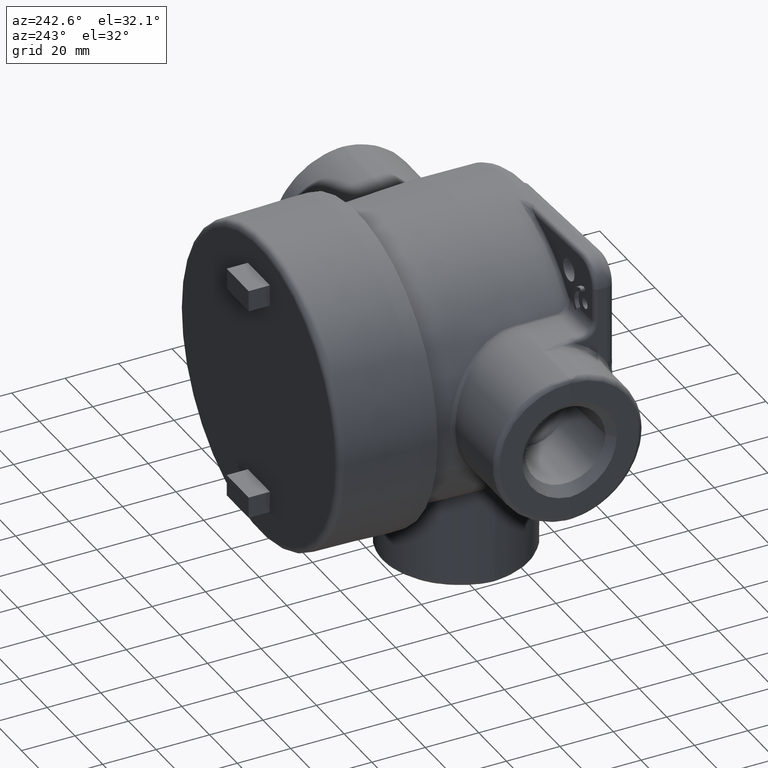
[diagram: clean part render]
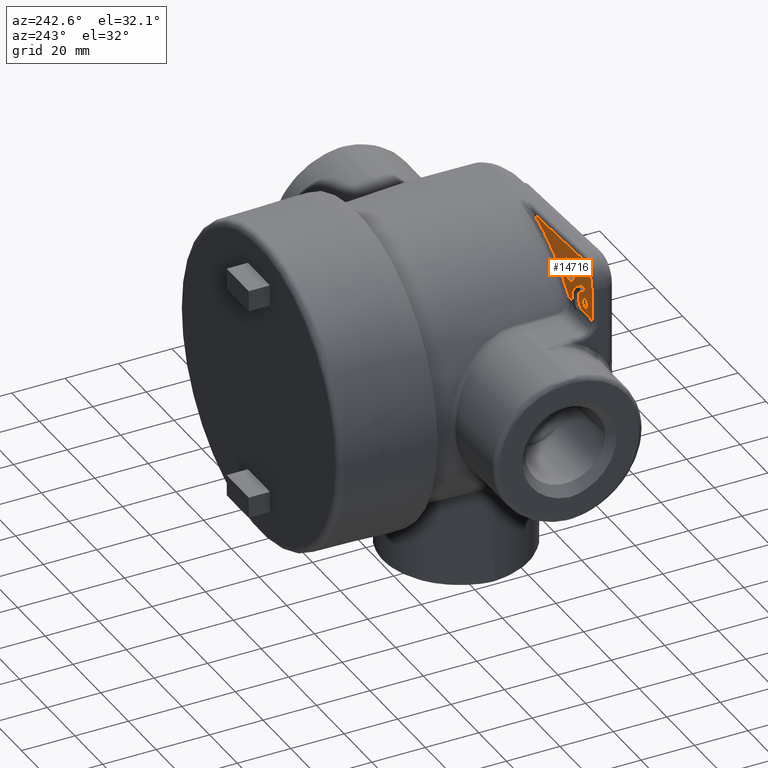
[diagram: same view with one face highlighted and labeled with its STEP entity id]
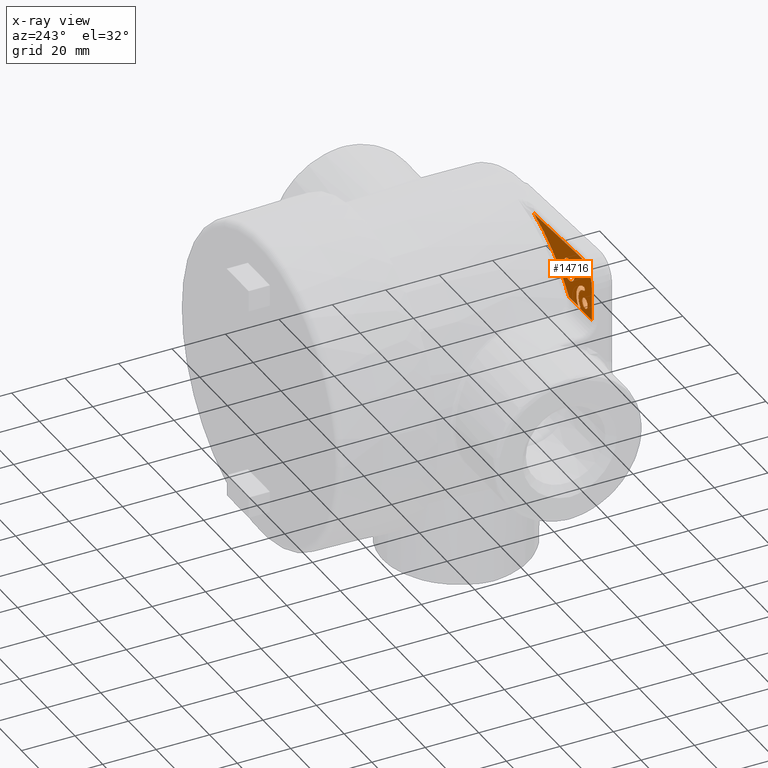
[diagram: x-ray of the same camera — body ghosted, the highlighted face saturated]
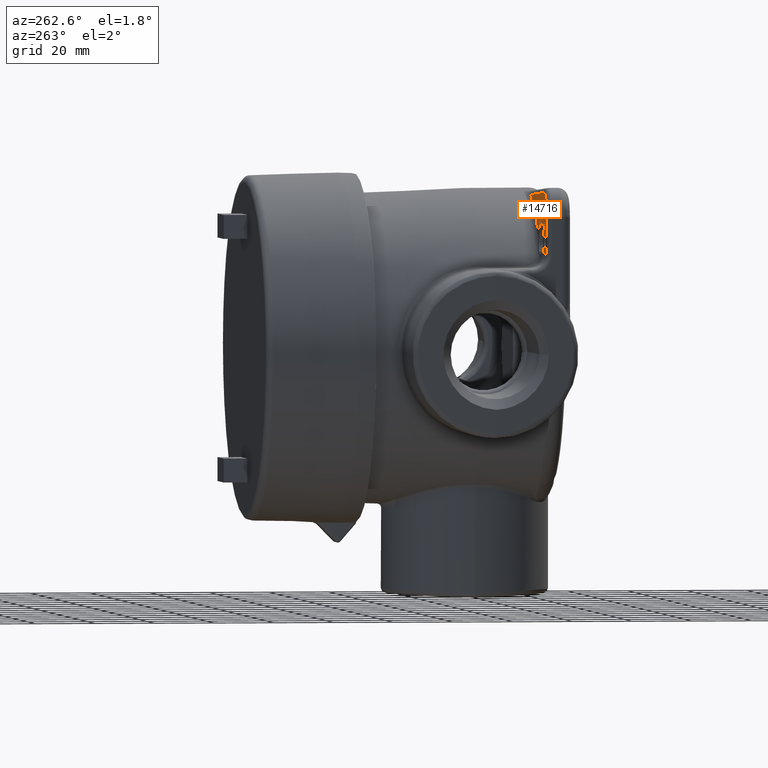
[diagram: same view with one face highlighted and labeled with its STEP entity id]
A machine part, auxiliary view. The second image highlights one B-rep face of the part: STEP entity #14716.
The next image is the same camera in x-ray: the body ghosted, the highlighted face saturated — about 0% of this face is hidden behind the body in this view.
A second angle (auxiliary view) of the same face is appended — the face is thin or edge-on in the first view.
In plain terms, the highlighted planar face has unit normal (-0, 1, 0).
Its self-contained STEP definition (entity closure, byte-faithful):
#138=FACE_BOUND('',#4469,.T.);
#139=FACE_BOUND('',#4470,.T.);
#321=PLANE('',#15878);
#1038=LINE('',#26155,#2313);
#1040=LINE('',#26167,#2315);
#1083=LINE('',#47854,#2358);
#1084=LINE('',#47856,#2359);
#2313=VECTOR('',#17310,0.393700787401575);
#2315=VECTOR('',#17324,0.393700787401575);
#2358=VECTOR('',#17693,0.393700787401575);
#2359=VECTOR('',#17694,0.393700787401575);
#3584=FACE_OUTER_BOUND('',#4468,.T.);
#4468=EDGE_LOOP('',(#11170,#11171,#11172,#11173,#11174,#11175,#11176,#11177,
#11178,#11179));
#4469=EDGE_LOOP('',(#11180));
#4470=EDGE_LOOP('',(#11181));
#5794=CIRCLE('',#15681,0.31);
#5883=CIRCLE('',#15835,0.03);
#5886=CIRCLE('',#15839,0.24);
#5888=CIRCLE('',#15842,0.03);
#5890=CIRCLE('',#15845,0.18);
#5891=CIRCLE('',#15849,0.1605);
#5893=CIRCLE('',#15852,0.0765);
#5906=CIRCLE('',#15879,2.13400540308935);
#6480=VERTEX_POINT('',#26147);
#6482=VERTEX_POINT('',#26153);
#6484=VERTEX_POINT('',#26159);
#6486=VERTEX_POINT('',#26165);
#6548=VERTEX_POINT('',#47808);
#6550=VERTEX_POINT('',#47825);
#6553=VERTEX_POINT('',#47833);
#6555=VERTEX_POINT('',#47840);
#6557=VERTEX_POINT('',#47846);
#6558=VERTEX_POINT('',#47855);
#6560=VERTEX_POINT('',#47867);
#6562=VERTEX_POINT('',#47873);
#8069=EDGE_CURVE('',#6482,#6480,#1038,.T.);
#8072=EDGE_CURVE('',#6484,#6482,#5794,.T.);
#8075=EDGE_CURVE('',#6486,#6484,#1040,.T.);
#8242=EDGE_CURVE('',#6550,#6548,#5883,.T.);
#8249=EDGE_CURVE('',#6553,#6555,#5886,.T.);
#8252=EDGE_CURVE('',#6555,#6557,#5888,.T.);
#8254=EDGE_CURVE('',#6557,#6550,#5890,.T.);
#8255=EDGE_CURVE('',#6480,#6548,#1083,.T.);
#8256=EDGE_CURVE('',#6553,#6558,#1084,.T.);
#8259=EDGE_CURVE('',#6560,#6560,#5891,.T.);
#8262=EDGE_CURVE('',#6562,#6562,#5893,.T.);
#8297=EDGE_CURVE('',#6558,#6486,#5906,.T.);
#11170=ORIENTED_EDGE('',*,*,#8075,.F.);
#11171=ORIENTED_EDGE('',*,*,#8297,.F.);
#11172=ORIENTED_EDGE('',*,*,#8256,.F.);
#11173=ORIENTED_EDGE('',*,*,#8249,.T.);
#11174=ORIENTED_EDGE('',*,*,#8252,.T.);
#11175=ORIENTED_EDGE('',*,*,#8254,.T.);
#11176=ORIENTED_EDGE('',*,*,#8242,.T.);
#11177=ORIENTED_EDGE('',*,*,#8255,.F.);
#11178=ORIENTED_EDGE('',*,*,#8069,.F.);
#11179=ORIENTED_EDGE('',*,*,#8072,.F.);
#11180=ORIENTED_EDGE('',*,*,#8259,.T.);
#11181=ORIENTED_EDGE('',*,*,#8262,.T.);
#14716=ADVANCED_FACE('',(#3584,#138,#139),#321,.T.);
#15681=AXIS2_PLACEMENT_3D('',#26161,#17316,#17317);
#15835=AXIS2_PLACEMENT_3D('',#47826,#17663,#17664);
#15839=AXIS2_PLACEMENT_3D('',#47842,#17674,#17675);
#15842=AXIS2_PLACEMENT_3D('',#47848,#17681,#17682);
#15845=AXIS2_PLACEMENT_3D('',#47851,#17687,#17688);
#15849=AXIS2_PLACEMENT_3D('',#47868,#17698,#17699);
#15852=AXIS2_PLACEMENT_3D('',#47874,#17705,#17706);
#15878=AXIS2_PLACEMENT_3D('',#48107,#17770,#17771);
#15879=AXIS2_PLACEMENT_3D('',#48108,#17772,#17773);
#17310=DIRECTION('',(1.22464679914735E-16,1.29666045940149E-31,-1.));
#17316=DIRECTION('center_axis',(-1.82892759761091E-30,-1.,-1.29666045940149E-31));
#17317=DIRECTION('ref_axis',(-0.688354575693754,1.16489425391257E-30,0.725374371012287));
#17324=DIRECTION('',(-0.998629534754574,1.81963491939547E-30,0.0523359562429437));
#17663=DIRECTION('center_axis',(-1.82892759761091E-30,-1.,-1.29666045940149E-31));
#17664=DIRECTION('ref_axis',(-0.757145694875169,0.,0.653246046089831));
#17674=DIRECTION('center_axis',(-1.82892759761091E-30,-1.,-1.29666045940149E-31));
#17675=DIRECTION('ref_axis',(-0.142857142857143,0.,-0.989743318610787));
#17681=DIRECTION('center_axis',(-1.82892759761091E-30,-1.,-1.29666045940149E-31));
#17682=DIRECTION('ref_axis',(0.142857142857143,0.,0.989743318610787));
#17687=DIRECTION('center_axis',(1.82892759761091E-30,1.,1.29666045940149E-31));
#17688=DIRECTION('ref_axis',(0.142857142857143,0.,0.989743318610787));
#17693=DIRECTION('',(1.,-1.82892759761091E-30,1.22464679914735E-16));
#17694=DIRECTION('',(1.,-1.82892759761091E-30,1.22464679914735E-16));
#17698=DIRECTION('center_axis',(-1.82892759761091E-30,-1.,-1.29666045940149E-31));
#17699=DIRECTION('ref_axis',(-1.,0.,-2.2689240960447E-16));
#17705=DIRECTION('center_axis',(-1.82892759761091E-30,-1.,-1.29666045940149E-31));
#17706=DIRECTION('ref_axis',(-1.,0.,-2.2689240960447E-16));
#17770=DIRECTION('center_axis',(1.82892759761091E-30,1.,1.29666045940149E-31));
#17771=DIRECTION('ref_axis',(1.22464679914735E-16,1.29666045940149E-31,
-1.));
#17772=DIRECTION('center_axis',(1.82892759761091E-30,1.,1.29666045940149E-31));
#17773=DIRECTION('ref_axis',(-0.513236269863804,8.27386436412633E-31,0.858247360203507));
#26147=CARTESIAN_POINT('',(-2.354,-3.1875,1.2815));
#26153=CARTESIAN_POINT('',(-2.354,-3.1875,1.77237894070708));
#26155=CARTESIAN_POINT('',(-2.354,-3.1875,1.59166701991584));
#26159=CARTESIAN_POINT('',(-2.02777585356469,-3.1875,2.08195409648099));
#26161=CARTESIAN_POINT('Origin',(-2.044,-3.1875,1.77237894070708));
#26165=CARTESIAN_POINT('',(-0.708860799341585,-3.1875,2.01283268742619));
#26167=CARTESIAN_POINT('',(-0.580124804144444,-3.1875,2.00608591980412));
#47808=CARTESIAN_POINT('',(-2.02191280051293,-3.1875,1.2815));
#47825=CARTESIAN_POINT('',(-2.01901269045729,-3.1875,1.31671462723868));
#47826=CARTESIAN_POINT('Origin',(-1.99629831961103,-3.1875,1.29711724585599));
#47833=CARTESIAN_POINT('',(-1.9702246293377,-3.1875,1.2815));
#47840=CARTESIAN_POINT('',(-2.1210132012491,-3.1875,1.67183731200144));
#47842=CARTESIAN_POINT('Origin',(-2.15529891553482,-3.1875,1.43429891553485));
#47846=CARTESIAN_POINT('',(-2.12958462982053,-3.1875,1.61245271288479));
#47848=CARTESIAN_POINT('Origin',(-2.12529891553482,-3.1875,1.64214501244312));
#47851=CARTESIAN_POINT('Origin',(-2.15529891553482,-3.1875,1.43429891553485));
#47854=CARTESIAN_POINT('',(-1.8105,-3.1875,1.2815));
#47855=CARTESIAN_POINT('',(-1.70638120313561,-3.1875,1.2815));
#47856=CARTESIAN_POINT('',(-1.8105,-3.1875,1.2815));
#47867=CARTESIAN_POINT('',(-1.54079891553482,-3.1875,1.70129891553485));
#47868=CARTESIAN_POINT('Origin',(-1.70129891553482,-3.1875,1.70129891553485));
#47873=CARTESIAN_POINT('',(-2.07879891553482,-3.1875,1.43429891553485));
#47874=CARTESIAN_POINT('Origin',(-2.15529891553482,-3.1875,1.43429891553485));
#48107=CARTESIAN_POINT('Origin',(-1.207,-3.1875,1.06111134661056));
#48108=CARTESIAN_POINT('Origin',(-9.14463798805455E-32,-3.1875,-6.48330229700743E-33));